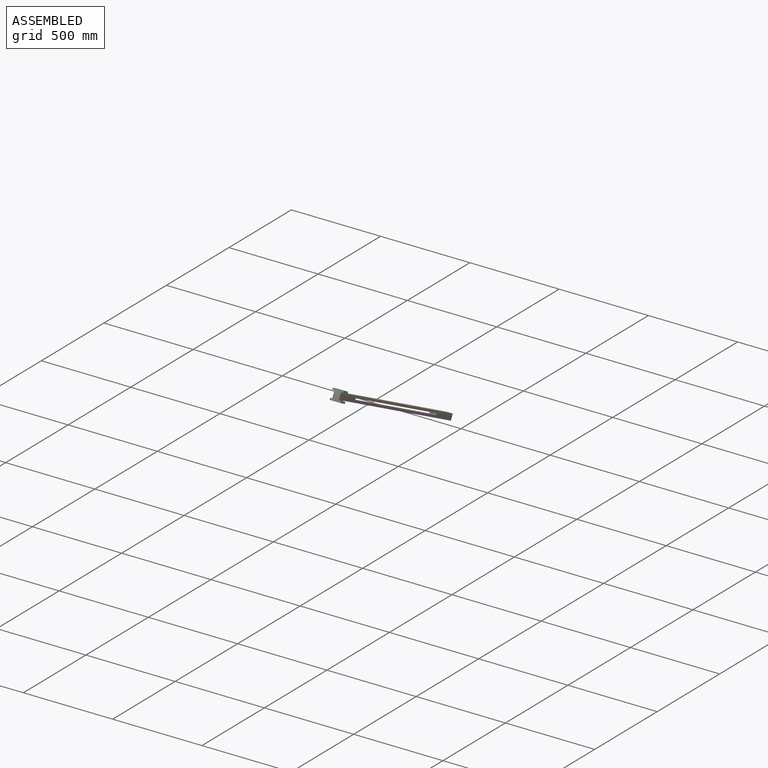
[diagram: assembled view]
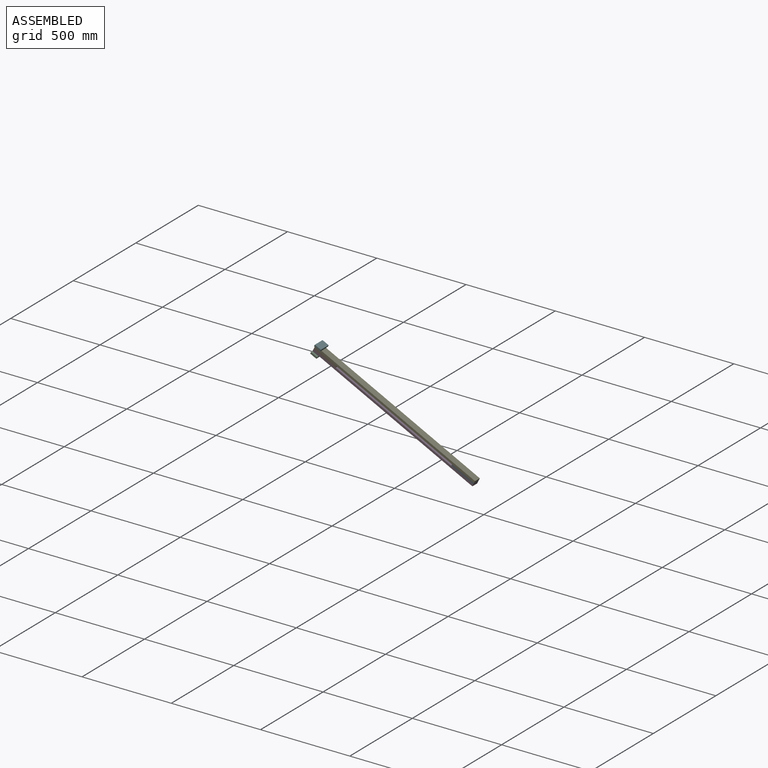
[diagram: assembled view, second angle]
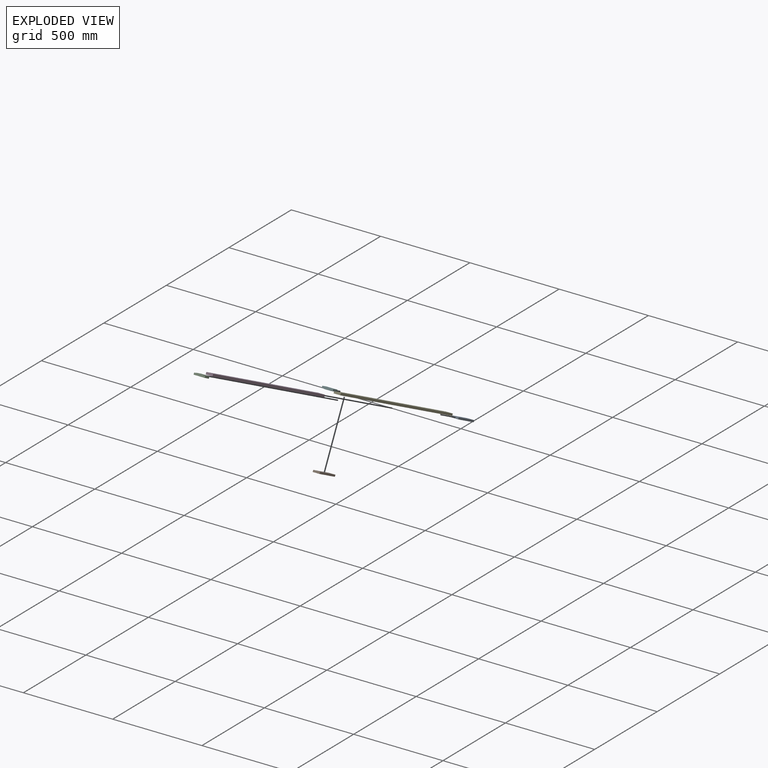
[diagram: exploded view]
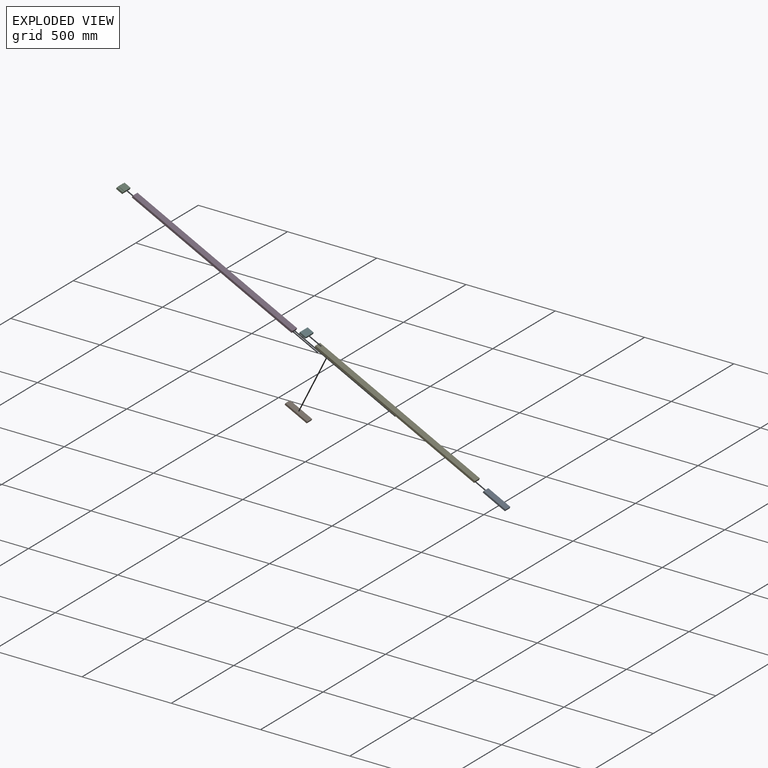
[diagram: exploded view, second angle]
ASSEMBLY  parts=6 mates=5
PART A: 6 faces, bbox 38x138x10 mm
  f0: plane 138x38mm, normal (0,0,1), area 5244mm2, adj f2,f3,f4,f5
  f1: plane 138x38mm, normal (0,0,-1), area 5244mm2, adj f2,f3,f4,f5
  f2: plane 38x10mm, normal (0,1,0), area 380mm2, adj f0,f1,f3,f4
  f3: plane 138x10mm, normal (1,0,0), area 1380mm2, adj f0,f1,f2,f5
  f4: plane 138x10mm, normal (-1,0,0), area 1380mm2, adj f0,f1,f2,f5
  f5: plane 38x10mm, normal (0,-1,0), area 380mm2, adj f0,f1,f3,f4
PART B: same geometry as A
PART C: 10 faces, bbox 62x38x12 mm
  f0: plane 62x12mm, normal (0,1,0), area 696mm2, adj f1,f3,f4,f5,f6,f7,f8,f9
  f1: plane 38x10mm, normal (-1,0,0), area 380mm2, adj f0,f2,f5,f7
  f2: plane 62x12mm, normal (0,-1,0), area 696mm2, adj f1,f3,f4,f5,f6,f7,f8,f9
  f3: plane 38x10mm, normal (1,0,0), area 380mm2, adj f0,f2,f5,f9
  f4: plane 38x38mm, normal (0,0,1), area 1444mm2, adj f0,f2,f6,f8
  f5: plane 62x38mm, normal (0,0,-1), area 2356mm2, adj f0,f1,f2,f3
  f6: plane 38x2mm, normal (-1,0,0), area 76mm2, adj f0,f2,f4,f7
  f7: plane 38x12mm, normal (0,0,1), area 456mm2, adj f0,f1,f2,f6
  f8: plane 38x2mm, normal (1,0,0), area 76mm2, adj f0,f2,f4,f9
  f9: plane 38x12mm, normal (0,0,1), area 456mm2, adj f0,f2,f3,f8
PART D: 6 faces, bbox 38x1000x12 mm
  f0: plane 1000x38mm, normal (0,0,1), area 38000mm2, adj f1,f3,f4,f5
  f1: plane 1000x12mm, normal (-1,0,0), area 12000mm2, adj f0,f2,f4,f5
  f2: plane 1000x38mm, normal (0,0,-1), area 38000mm2, adj f1,f3,f4,f5
  f3: plane 1000x12mm, normal (1,0,0), area 12000mm2, adj f0,f2,f4,f5
  f4: plane 38x12mm, normal (0,-1,0), area 456mm2, adj f0,f1,f2,f3
  f5: plane 38x12mm, normal (0,1,0), area 456mm2, adj f0,f1,f2,f3
PART E: same geometry as D
PART F: same geometry as C
PLACE A rot(axis=(-1,0,0),26.5deg) t=(-310.46,546.2,-627.64)mm
PLACE B rot(axis=(-1,0,0),26.5deg) t=(-310.46,-224.99,-242.52)mm
PLACE C rot(axis=(-1,0,0),26.5deg) t=(-381.42,-738.35,-222.64)mm
PLACE D rot(axis=(-1,0,0),26.5deg) t=(-250.39,100.88,-614.91)mm
PLACE E rot(axis=(-1,0,0),26.5deg) t=(-250.39,110.71,-595.23)mm
PLACE F rot(axis=(0,-0.97,0.23),180deg) t=(-201.5,-712.44,-170.75)mm
MATE fastened F.f2 <-> E.f4  axis (0,-0.89,0.45) through (-272.46,-783.04,-146.66)mm
MATE fastened B.f5 <-> D.f4  axis (0,-0.89,0.45) through (-272.46,-793.77,-168.14)mm
MATE fastened D.f4 <-> C.f2  axis (0,-0.89,0.45) through (-272.46,-799.13,-178.87)mm
MATE fastened A.f2 <-> E.f5  axis (0,0.89,-0.45) through (-272.46,105.35,-605.96)mm
MATE fastened E.f2 <-> B.f0  axis (0,-0.45,-0.89) through (-272.46,-789.3,-159.19)mm
